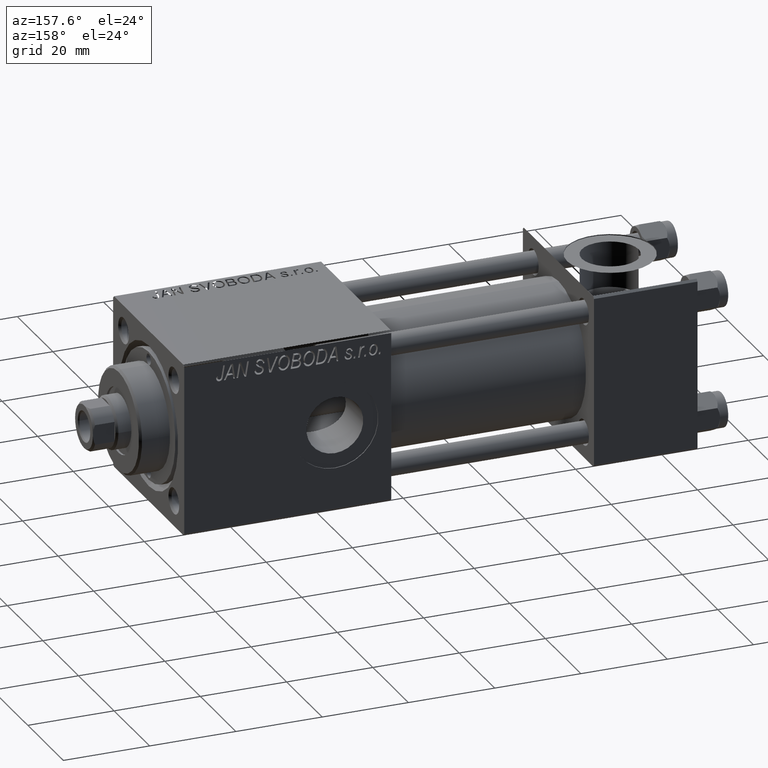
[diagram: clean part render]
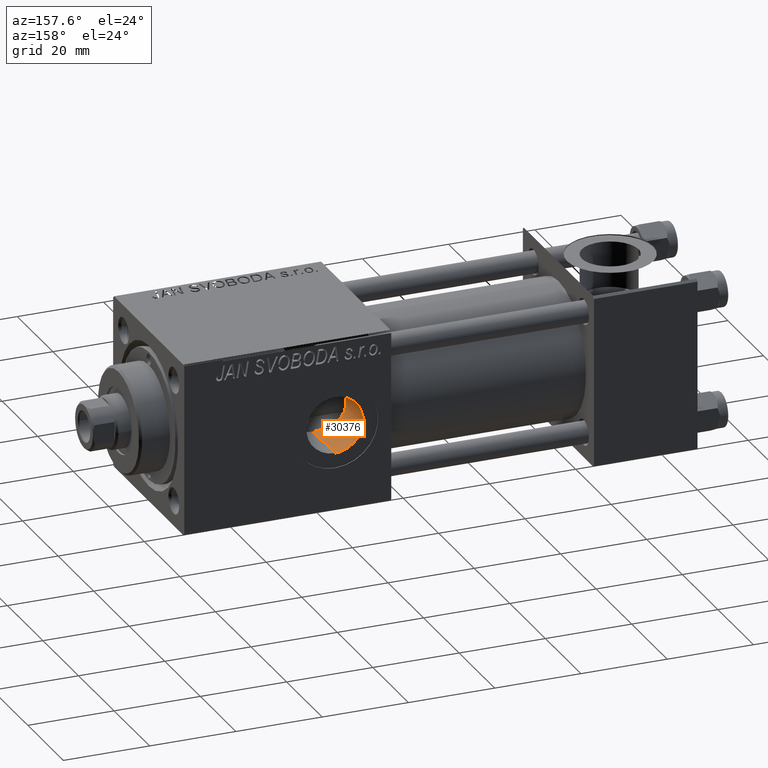
[diagram: same view with one face highlighted and labeled with its STEP entity id]
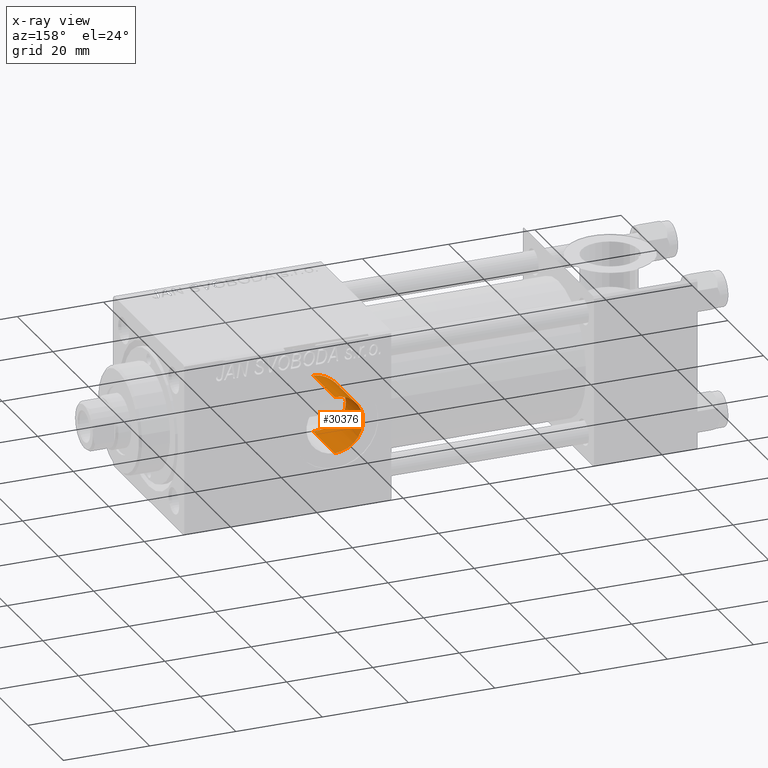
[diagram: x-ray of the same camera — body ghosted, the highlighted face saturated]
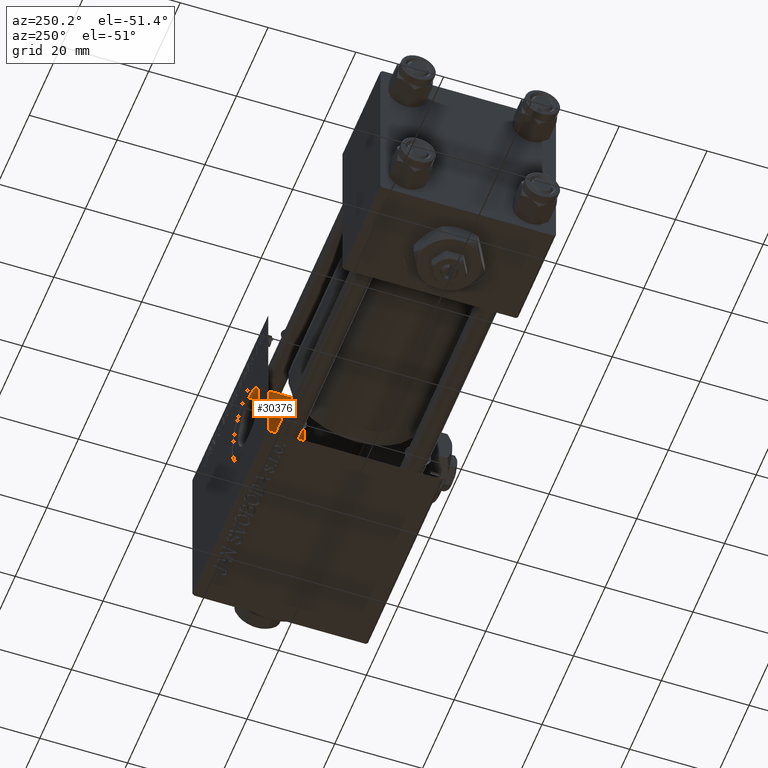
[diagram: same view with one face highlighted and labeled with its STEP entity id]
A machine part, auxiliary view. The second image highlights one B-rep face of the part: STEP entity #30376.
The next image is the same camera in x-ray: the body ghosted, the highlighted face saturated — about 0% of this face is hidden behind the body in this view.
A second angle (auxiliary view) of the same face is appended — the face is thin or edge-on in the first view.
In plain terms, the highlighted cylindrical surface (edge-blend (fillet) strip) has radius 6.58 mm, axis along (0, 1, 0).
Its self-contained STEP definition (entity closure, byte-faithful):
#205 = EDGE_CURVE ( 'NONE', #47814, #21086, #47204, .T. ) ;
#1848 = CARTESIAN_POINT ( 'NONE',  ( 77.50781260172354337, 9.942383431864936227, 1.093810025436623645 ) ) ;
#3139 = VERTEX_POINT ( 'NONE', #11277 ) ;
#3811 = CIRCLE ( 'NONE', #35090, 6.580000000001541061 ) ;
#5046 = CARTESIAN_POINT ( 'NONE',  ( 84.00000000000000000, -18.61105048083429381, 6.580000000001541061 ) ) ;
#5228 = VECTOR ( 'NONE', #28330, 1000.000000000000000 ) ;
#5293 = CARTESIAN_POINT ( 'NONE',  ( 84.00000000000000000, 7.530179280733528380, -6.580000000001541061 ) ) ;
#5545 = CARTESIAN_POINT ( 'NONE',  ( 77.63933714938005437, 9.856835002517238209, 1.741389802721726943 ) ) ;
#5802 = CARTESIAN_POINT ( 'NONE',  ( 83.10965444000915170, 7.570770745330474227, -6.534274136617614914 ) ) ;
#6338 = CARTESIAN_POINT ( 'NONE',  ( 77.64486949931729498, 9.853260265445705102, -1.760971689083564717 ) ) ;
#6462 = VERTEX_POINT ( 'NONE', #30832 ) ;
#8546 = EDGE_CURVE ( 'NONE', #6462, #3139, #3811, .T. ) ;
#9527 = CARTESIAN_POINT ( 'NONE',  ( 77.43052818302716389, 9.993061695181122417, 0.4333401385723366084 ) ) ;
#10301 = CARTESIAN_POINT ( 'NONE',  ( 82.46400010845870554, 7.682314708623860788, -6.401981549517835823 ) ) ;
#10816 = CARTESIAN_POINT ( 'NONE',  ( 83.10726510395780053, 7.579703922829979845, 6.522958760668643663 ) ) ;
#11277 = CARTESIAN_POINT ( 'NONE',  ( 84.00000000000000000, 19.79999999999999716, 6.580000000001541061 ) ) ;
#12663 = CARTESIAN_POINT ( 'NONE',  ( 84.00000000000000000, 19.79999999999999716, 0.000000000000000000 ) ) ;
#14016 = CARTESIAN_POINT ( 'NONE',  ( 77.42109887630859077, 9.999276940569060912, -0.4637401164956371780 ) ) ;
#14280 = CARTESIAN_POINT ( 'NONE',  ( 80.67561368687753998, 8.225369955963126145, -5.694022486113063941 ) ) ;
#14562 = DIRECTION ( 'NONE',  ( -0.000000000000000000, 1.000000000000000000, -0.000000000000000000 ) ) ;
#14609 = AXIS2_PLACEMENT_3D ( 'NONE', #15079, #14562, #46578 ) ;
#15079 = CARTESIAN_POINT ( 'NONE',  ( 84.00000000000000000, -18.61105048083429381, 0.000000000000000000 ) ) ;
#17462 = CARTESIAN_POINT ( 'NONE',  ( 82.24985912774513963, 7.728280517145809547, -6.346698061137820979 ) ) ;
#17723 = CARTESIAN_POINT ( 'NONE',  ( 80.67181861905662288, 8.226989970427338150, 5.691590015522013601 ) ) ;
#17985 = CARTESIAN_POINT ( 'NONE',  ( 79.06101818986421392, 9.001882163286262895, 4.367698871531162652 ) ) ;
#18510 = CARTESIAN_POINT ( 'NONE',  ( 83.54968518773715402, 7.530179280732935965, -6.580000000001545502 ) ) ;
#19303 = FACE_OUTER_BOUND ( 'NONE', #29020, .T. ) ;
#21086 = VERTEX_POINT ( 'NONE', #32103 ) ;
#21435 = CARTESIAN_POINT ( 'NONE',  ( 81.83515531262789011, 7.832616369987860594, -6.217476725452558917 ) ) ;
#21948 = CARTESIAN_POINT ( 'NONE',  ( 78.32060445677637972, 9.429864945221897443, -3.349355904676040385 ) ) ;
#22222 = CARTESIAN_POINT ( 'NONE',  ( 79.06583207920361644, 8.999241216751153516, -4.373088525024469320 ) ) ;
#22481 = CARTESIAN_POINT ( 'NONE',  ( 77.46739070597121213, 9.968652785925241844, -0.9020647327270657767 ) ) ;
#22504 = CYLINDRICAL_SURFACE ( 'NONE', #14609, 6.580000000001541061 ) ;
#23331 = ORIENTED_EDGE ( 'NONE', *, *, #205, .F. ) ;
#25355 = DIRECTION ( 'NONE',  ( 0.000000000000000000, 1.000000000000000000, 0.000000000000000000 ) ) ;
#25842 = LINE ( 'NONE', #42524, #38231 ) ;
#26176 = CARTESIAN_POINT ( 'NONE',  ( 79.97744829692106805, 8.531476352749741920, -5.224223791846402953 ) ) ;
#27735 = CARTESIAN_POINT ( 'NONE',  ( 83.55021314680948308, 7.540374272969198266, 6.568383239024063514 ) ) ;
#28330 = DIRECTION ( 'NONE',  ( -0.000000000000000000, 1.000000000000000000, -0.000000000000000000 ) ) ;
#28986 = EDGE_CURVE ( 'NONE', #47814, #6462, #25842, .T. ) ;
#29020 = EDGE_LOOP ( 'NONE', ( #23331, #33677, #37660, #47238 ) ) ;
#29621 = CARTESIAN_POINT ( 'NONE',  ( 77.47471016135041566, 9.964071937118836431, 0.8754062778589781768 ) ) ;
#29891 = CARTESIAN_POINT ( 'NONE',  ( 81.03930837247143870, 8.082784440516416424, 5.891714884322310830 ) ) ;
#30148 = CARTESIAN_POINT ( 'NONE',  ( 79.97861002298088806, 8.531011078197231257, 5.224883813251538278 ) ) ;
#30376 = ADVANCED_FACE ( 'NONE', ( #19303 ), #22504, .F. ) ;
#30405 = CARTESIAN_POINT ( 'NONE',  ( 78.10938216452409222, 9.559587018131603386, 2.963824561551262171 ) ) ;
#30832 = CARTESIAN_POINT ( 'NONE',  ( 84.00000000000000000, 19.79999999999999716, -6.580000000001541061 ) ) ;
#31967 = CARTESIAN_POINT ( 'NONE',  ( 82.88927853673709478, 7.608716402194636963, 6.489281286025934570 ) ) ;
#32103 = CARTESIAN_POINT ( 'NONE',  ( 84.00000000000000000, 7.530179280732942182, 6.580000000001541061 ) ) ;
#33589 = CARTESIAN_POINT ( 'NONE',  ( 78.79387502112872710, 9.152625658485336047, -4.045983368348030851 ) ) ;
#33677 = ORIENTED_EDGE ( 'NONE', *, *, #28986, .T. ) ;
#34643 = CARTESIAN_POINT ( 'NONE',  ( 78.31448218403804162, 9.433508227117279432, 3.339653543888651654 ) ) ;
#35090 = AXIS2_PLACEMENT_3D ( 'NONE', #12663, #25355, #45726 ) ;
#37558 = CARTESIAN_POINT ( 'NONE',  ( 79.65669753948637322, 8.689338620986079675, -4.960407246871278097 ) ) ;
#37660 = ORIENTED_EDGE ( 'NONE', *, *, #8546, .T. ) ;
#37810 = CARTESIAN_POINT ( 'NONE',  ( 77.41947924441220152, 10.00034265660074695, 0.2080752460831405970 ) ) ;
#38073 = CARTESIAN_POINT ( 'NONE',  ( 77.77899784263125582, 9.766632874168626799, -2.186530610314237677 ) ) ;
#38231 = VECTOR ( 'NONE', #46998, 1000.000000000000000 ) ;
#38352 = CARTESIAN_POINT ( 'NONE',  ( 78.79331962357001373, 9.152894906955367560, 4.045847017192802042 ) ) ;
#38614 = CARTESIAN_POINT ( 'NONE',  ( 77.77198206538861314, 9.771107044109385242, 2.166893426415036128 ) ) ;
#39390 = CARTESIAN_POINT ( 'NONE',  ( 82.24499048461136397, 7.720408724896440589, 6.356778800092961923 ) ) ;
#39776 = CARTESIAN_POINT ( 'NONE',  ( 84.00000000000000000, 7.530179280733528380, -6.580000000001541061 ) ) ;
#41300 = LINE ( 'NONE', #5046, #5228 ) ;
#42325 = CARTESIAN_POINT ( 'NONE',  ( 81.82399083970003062, 7.829477968820521383, 6.224386180640900434 ) ) ;
#42524 = CARTESIAN_POINT ( 'NONE',  ( 84.00000000000000000, -18.61105048083429381, -6.580000000001541061 ) ) ;
#42599 = CARTESIAN_POINT ( 'NONE',  ( 78.11697545012091837, 9.554905949892150474, -2.978557721003238346 ) ) ;
#43669 = EDGE_CURVE ( 'NONE', #21086, #3139, #41300, .T. ) ;
#43885 = CARTESIAN_POINT ( 'NONE',  ( 84.00000000000000000, 7.530179280732942182, 6.580000000001541061 ) ) ;
#45726 = DIRECTION ( 'NONE',  ( 0.000000000000000000, 0.000000000000000000, 1.000000000000000000 ) ) ;
#45764 = CARTESIAN_POINT ( 'NONE',  ( 79.65199552751970202, 8.691690517589089282, 4.956328465761515645 ) ) ;
#46578 = DIRECTION ( 'NONE',  ( 0.000000000000000000, 0.000000000000000000, 1.000000000000000000 ) ) ;
#46998 = DIRECTION ( 'NONE',  ( -0.000000000000000000, 1.000000000000000000, -0.000000000000000000 ) ) ;
#47204 = B_SPLINE_CURVE_WITH_KNOTS ( 'NONE', 3,
 ( #5293, #18510, #5802, #10301, #17462, #21435, #50272, #50534, #14280, #26176, #37558, #22222, #33589, #21948, #42599, #38073, #6338, #22481, #14016, #37810, #9527, #29621, #1848, #5545, #38614, #30405, #34643, #38352, #17985, #45764, #30148, #17723, #29891, #42325, #39390, #31967, #10816, #27735, #47326, #43885 ),
 .UNSPECIFIED., .F., .F.,
 ( 4, 2, 2, 2, 2, 2, 2, 2, 2, 2, 2, 2, 2, 2, 2, 2, 2, 2, 2, 4 ),
 ( 0.008701731815734378359, 0.01002764154747471867, 0.01069059641334490704, 0.01135355127921509888, 0.01267946101095547735, 0.01400537074269585583, 0.01533128047443623604, 0.01665719020617661625, 0.01798309993791699646, 0.01930900966965737667, 0.01997196453552756504, 0.02063491940139775688, 0.02196082913313814056, 0.02328673886487853117, 0.02461264859661891485, 0.02593855832835930547, 0.02726446806009968915, 0.02859037779184007977, 0.02925333265771025426, 0.02991628752358042875 ),
 .UNSPECIFIED. ) ;
#47238 = ORIENTED_EDGE ( 'NONE', *, *, #43669, .F. ) ;
#47326 = CARTESIAN_POINT ( 'NONE',  ( 83.77658445718559221, 7.530179280732943958, 6.580000000001541949 ) ) ;
#47814 = VERTEX_POINT ( 'NONE', #39776 ) ;
#50272 = CARTESIAN_POINT ( 'NONE',  ( 81.63397822778019020, 7.890965100432630663, -6.143572682359865311 ) ) ;
#50534 = CARTESIAN_POINT ( 'NONE',  ( 81.04685303640178518, 8.080059513839010776, -5.895413499624620357 ) ) ;